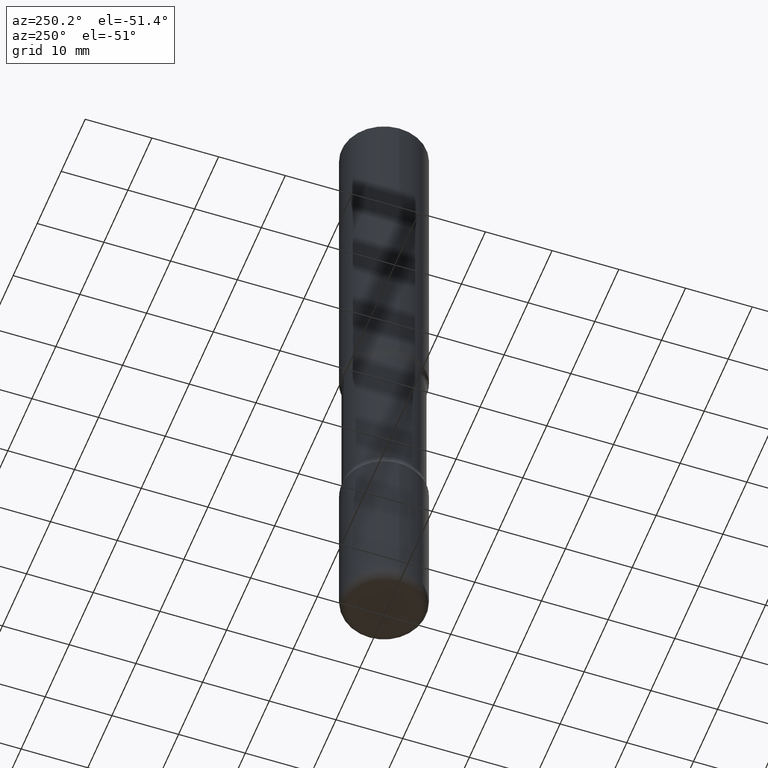
[diagram: clean part render]
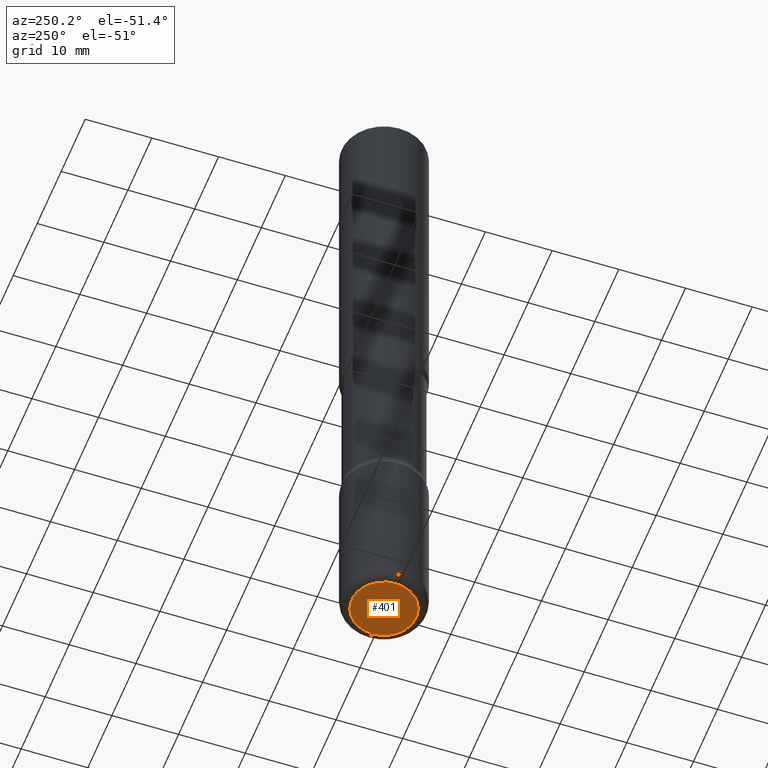
[diagram: same view with one face highlighted and labeled with its STEP entity id]
A machine part, auxiliary view. The second image highlights one B-rep face of the part: STEP entity #401.
In plain terms, the highlighted planar face has unit normal (0, -0, -1).
Its self-contained STEP definition (entity closure, byte-faithful):
#5 = EDGE_CURVE ( 'NONE', #344, #221, #487, .T. ) ;
#80 = ORIENTED_EDGE ( 'NONE', *, *, #141, .F. ) ;
#94 = ORIENTED_EDGE ( 'NONE', *, *, #5, .F. ) ;
#102 = AXIS2_PLACEMENT_3D ( 'NONE', #193, #498, #458 ) ;
#136 = FACE_OUTER_BOUND ( 'NONE', #297, .T. ) ;
#141 = EDGE_CURVE ( 'NONE', #221, #344, #370, .T. ) ;
#193 = CARTESIAN_POINT ( 'NONE',  ( 9.781875224740546387E-29, -1.396592535537258233E-14, -4.000000000000000000 ) ) ;
#221 = VERTEX_POINT ( 'NONE', #272 ) ;
#246 = CARTESIAN_POINT ( 'NONE',  ( 0.1900000000000003630, -1.529268826413297711E-14, -4.000000000000000000 ) ) ;
#272 = CARTESIAN_POINT ( 'NONE',  ( -0.1900000000000003630, -1.229798689653506559E-14, -4.000000000000000000 ) ) ;
#297 = EDGE_LOOP ( 'NONE', ( #94, #80 ) ) ;
#299 = DIRECTION ( 'NONE',  ( 1.000000000000000000, -6.982962677686269077E-15, 0.000000000000000000 ) ) ;
#312 = PLANE ( 'NONE',  #395 ) ;
#326 = DIRECTION ( 'NONE',  ( -1.000000000000000000, 6.982962677686265922E-15, -4.876176775795935793E-29 ) ) ;
#344 = VERTEX_POINT ( 'NONE', #246 ) ;
#346 = CARTESIAN_POINT ( 'NONE',  ( 9.781875224740546387E-29, -1.396592535537258233E-14, -4.000000000000000000 ) ) ;
#365 = DIRECTION ( 'NONE',  ( 2.438088387897960049E-29, -3.491481338843145188E-15, -1.000000000000000000 ) ) ;
#370 = CIRCLE ( 'NONE', #554, 0.1900000000000003630 ) ;
#395 = AXIS2_PLACEMENT_3D ( 'NONE', #452, #365, #326 ) ;
#401 = ADVANCED_FACE ( 'NONE', ( #136 ), #312, .T. ) ;
#452 = CARTESIAN_POINT ( 'NONE',  ( 9.781875224740546387E-29, -1.396592535537258233E-14, -4.000000000000000000 ) ) ;
#458 = DIRECTION ( 'NONE',  ( 1.000000000000000000, -6.982962677686269077E-15, 0.000000000000000000 ) ) ;
#487 = CIRCLE ( 'NONE', #102, 0.1900000000000003630 ) ;
#498 = DIRECTION ( 'NONE',  ( -2.445468806185136597E-29, 3.491481338843145583E-15, 1.000000000000000000 ) ) ;
#554 = AXIS2_PLACEMENT_3D ( 'NONE', #346, #559, #299 ) ;
#559 = DIRECTION ( 'NONE',  ( -2.445468806185136597E-29, 3.491481338843145583E-15, 1.000000000000000000 ) ) ;